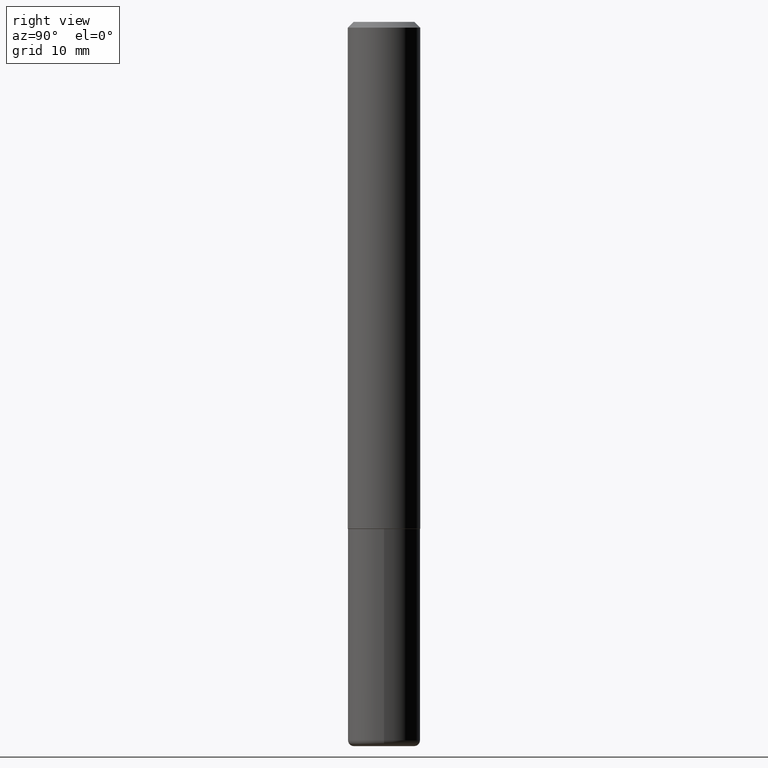
[diagram: clean part render]
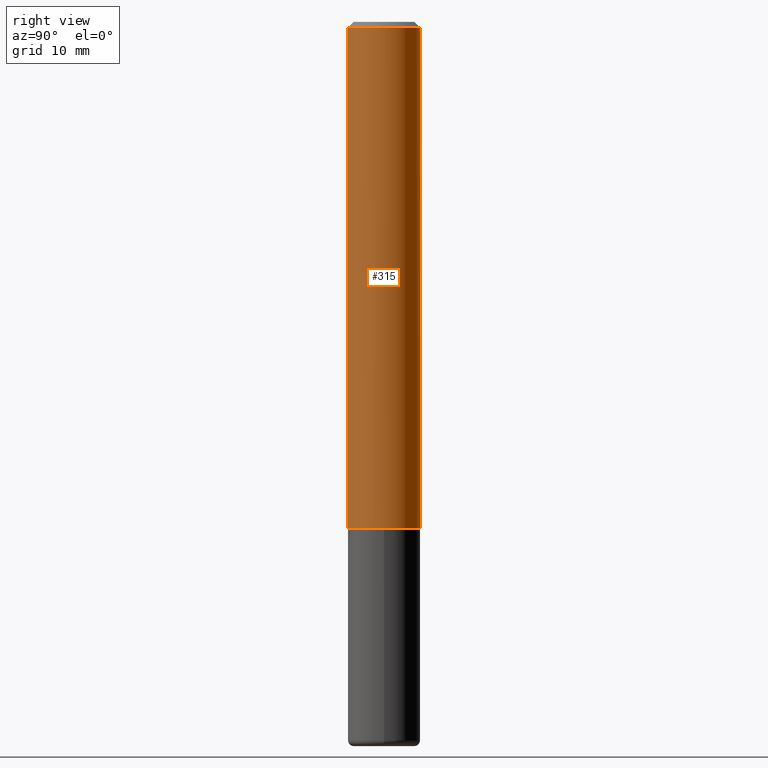
[diagram: same view with one face highlighted and labeled with its STEP entity id]
A machine part, right view. The second image highlights one B-rep face of the part: STEP entity #315.
In plain terms, the highlighted cylindrical surface (edge-blend (fillet) strip) has radius 3.175 mm, axis along (-0, 0, 1).
Its self-contained STEP definition (entity closure, byte-faithful):
#16 = CARTESIAN_POINT ( 'NONE',  ( 8.881784197001260212E-16, 0.1250000000000001110, -4.362845215594827410E-16 ) ) ;
#25 = LINE ( 'NONE', #276, #185 ) ;
#46 = ORIENTED_EDGE ( 'NONE', *, *, #291, .T. ) ;
#55 = DIRECTION ( 'NONE',  ( -2.446310369361453361E-29, 3.490276172475858378E-15, 1.000000000000000000 ) ) ;
#63 = CIRCLE ( 'NONE', #222, 0.1250000000000002498 ) ;
#94 = AXIS2_PLACEMENT_3D ( 'NONE', #403, #405, #363 ) ;
#97 = VERTEX_POINT ( 'NONE', #350 ) ;
#111 = ORIENTED_EDGE ( 'NONE', *, *, #366, .F. ) ;
#115 = AXIS2_PLACEMENT_3D ( 'NONE', #336, #204, #334 ) ;
#122 = CARTESIAN_POINT ( 'NONE',  ( -8.575622497214408537E-16, -0.1250000000000000555, -0.01999999999999959102 ) ) ;
#143 = FACE_OUTER_BOUND ( 'NONE', #255, .T. ) ;
#145 = VERTEX_POINT ( 'NONE', #122 ) ;
#147 = CARTESIAN_POINT ( 'NONE',  ( -8.728703347107421208E-16, -0.1250000000000063560, -1.748999999999999666 ) ) ;
#178 = CYLINDRICAL_SURFACE ( 'NONE', #94, 0.1250000000000001110 ) ;
#185 = VECTOR ( 'NONE', #407, 39.37007874015748143 ) ;
#189 = EDGE_CURVE ( 'NONE', #396, #145, #25, .T. ) ;
#204 = DIRECTION ( 'NONE',  ( -2.446310369361453361E-29, 3.490276172475858772E-15, 1.000000000000000000 ) ) ;
#222 = AXIS2_PLACEMENT_3D ( 'NONE', #262, #271, #264 ) ;
#230 = ORIENTED_EDGE ( 'NONE', *, *, #387, .T. ) ;
#255 = EDGE_LOOP ( 'NONE', ( #46, #230, #111, #298 ) ) ;
#262 = CARTESIAN_POINT ( 'NONE',  ( 4.278596836013182697E-29, -6.104493025660276744E-15, -1.749000000000000110 ) ) ;
#264 = DIRECTION ( 'NONE',  ( -6.982962677686265133E-15, -1.000000000000000000, 4.370956789862812472E-15 ) ) ;
#271 = DIRECTION ( 'NONE',  ( -2.446310369361453361E-29, 3.490276172475858772E-15, 1.000000000000000000 ) ) ;
#276 = CARTESIAN_POINT ( 'NONE',  ( -8.728703347107841277E-16, -0.1250000000000001110, 4.362845215594827410E-16 ) ) ;
#291 = EDGE_CURVE ( 'NONE', #396, #307, #63, .T. ) ;
#298 = ORIENTED_EDGE ( 'NONE', *, *, #189, .F. ) ;
#306 = CIRCLE ( 'NONE', #115, 0.1250000000000000000 ) ;
#307 = VERTEX_POINT ( 'NONE', #338 ) ;
#309 = LINE ( 'NONE', #16, #319 ) ;
#315 = ADVANCED_FACE ( 'NONE', ( #143 ), #178, .T. ) ;
#319 = VECTOR ( 'NONE', #55, 39.37007874015748143 ) ;
#334 = DIRECTION ( 'NONE',  ( -6.982962677686265922E-15, -1.000000000000000000, 3.483106191921935554E-15 ) ) ;
#336 = CARTESIAN_POINT ( 'NONE',  ( 4.892620738722911906E-31, -6.980552344951725975E-17, -0.02000000000000002470 ) ) ;
#338 = CARTESIAN_POINT ( 'NONE',  ( 8.881784197001479121E-16, 0.1249999999999941019, -1.749000000000000554 ) ) ;
#350 = CARTESIAN_POINT ( 'NONE',  ( 8.728703347107837333E-16, 0.1249999999999999306, -0.02000000000000046185 ) ) ;
#363 = DIRECTION ( 'NONE',  ( -6.982962677686266711E-15, -1.000000000000000000, 3.490276172475858772E-15 ) ) ;
#366 = EDGE_CURVE ( 'NONE', #145, #97, #306, .T. ) ;
#387 = EDGE_CURVE ( 'NONE', #307, #97, #309, .T. ) ;
#396 = VERTEX_POINT ( 'NONE', #147 ) ;
#403 = CARTESIAN_POINT ( 'NONE',  ( 0.000000000000000000, 0.000000000000000000, 0.000000000000000000 ) ) ;
#405 = DIRECTION ( 'NONE',  ( -2.446310369361453361E-29, 3.490276172475858772E-15, 1.000000000000000000 ) ) ;
#407 = DIRECTION ( 'NONE',  ( -2.446310369361453361E-29, 3.490276172475858378E-15, 1.000000000000000000 ) ) ;